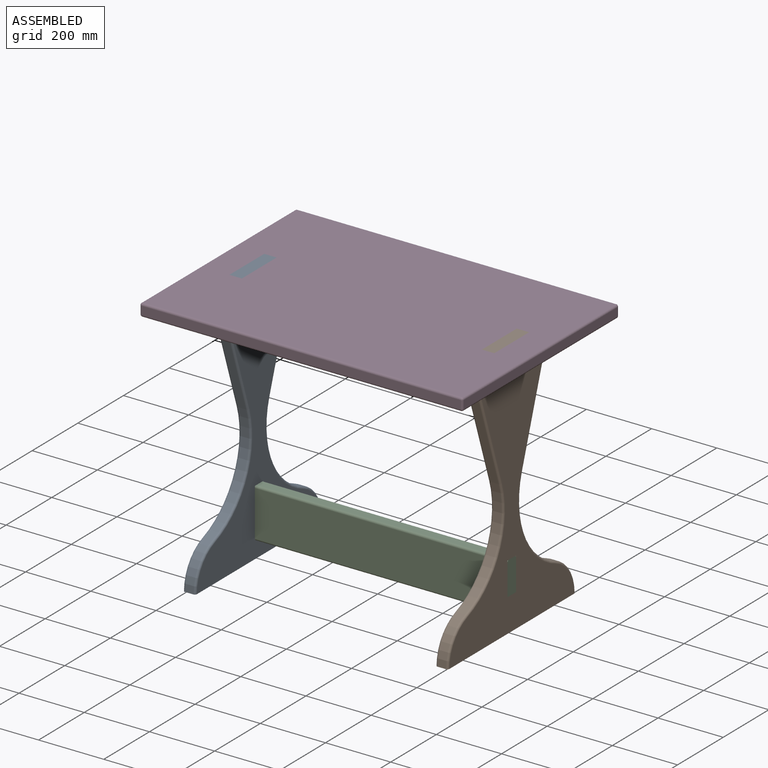
[diagram: assembled view]
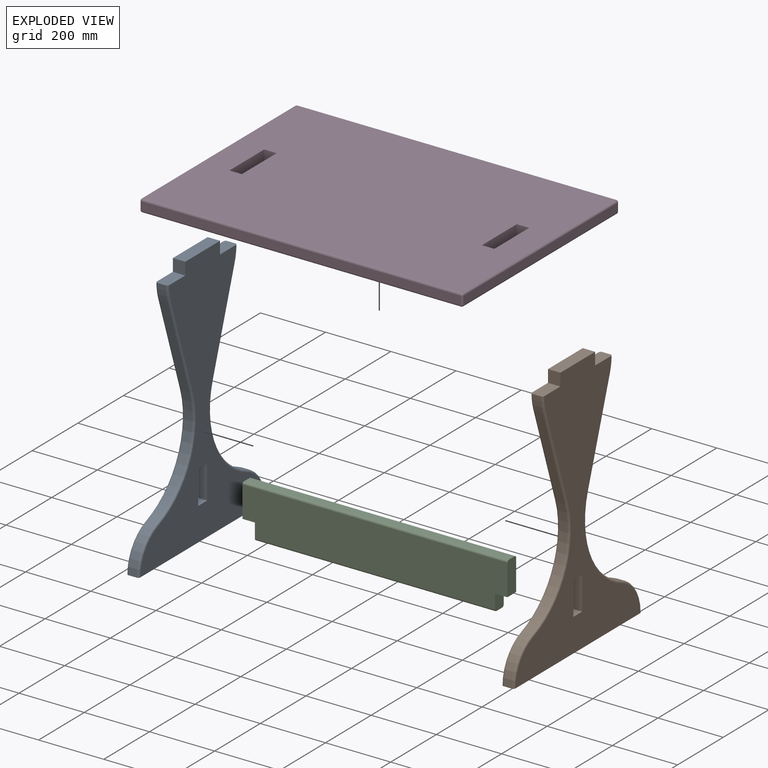
[diagram: exploded view]
GUIDED TOUR — MATED ASSEMBLY (Onshape document 2087d97269d799c85a625509, AutoMate assembly 2087d97269d799c85a625509_5569bcdcba171723008a107e_179e68268d41055ade5ea833_default)

This assembly has 4 components, labeled P0..P3 below (a component is one placed occurrence of a part; the same part can appear more than once), held together by 9 mates. A mate is a constraint between two components; its type names the relative motion it leaves free:
  PLANAR — leaves sliding in the plane through the listed point (normal = the listed direction) and rotation about that normal free.
Axis/direction vectors are unit vectors and 'through' points are millimeter coordinates, both in the assembly's world frame.

MATES
  1. PLANAR "Planar 9": P3 <-> P0, direction (0.000, 0.000, -1.000) through (23.69, 373.24, 503.93) mm
  2. PLANAR "Planar 3": P0 <-> P2, direction (1.000, 0.000, 0.000) through (-344.61, 373.24, 87.09) mm
  3. PLANAR "Planar 2": P2 <-> P0, direction (0.000, 0.000, -1.000) through (-363.66, 373.24, -156.47) mm
  4. PLANAR "Planar 6": P2 <-> P1, direction (0.000, 0.000, -1.000) through (411.04, 373.24, -156.47) mm
  5. PLANAR "Planar 7": P3 <-> P1, direction (0.000, -1.000, 0.000) through (411.04, 449.44, 522.98) mm
  6. PLANAR "Planar 4": P2 <-> P1, direction (0.000, 1.000, 0.000) through (23.69, 392.29, -129.61) mm
  7. PLANAR "Planar 1": P2 <-> P0, direction (0.000, -1.000, 0.000) through (-382.71, 354.19, -108.85) mm
  8. PLANAR "Planar 8": P3 <-> P1, direction (1.000, 0.000, 0.000) through (391.99, 373.24, 522.98) mm
  9. PLANAR "Planar 5": P2 <-> P1, direction (1.000, 0.000, 0.000) through (391.99, 373.24, -181.66) mm

ASSEMBLY ORDER
  1. P2 — the base component [order heuristic]
  2. P0 — core [order heuristic]
  3. P1 — core [order heuristic]
  4. P3 [order verified]
Order-tag legend:
  [order verified] — this step's position reverses a verified removal order: the component was checked to insert without passing through the ones already placed.
  [order heuristic] — the first 3 components form the assembly's core: parts whose collision-free extraction could not be verified, listed in mate-graph order.

Of the 4 components, 4 carry the full construction recipe — the FeatureScript program that regenerates the part's solid from scratch; the rest are supplied as boundary geometry only.
Each toured component is shown spotlighted twice — in the assembled view, then in the exploded view, where a leader line traces a displaced component back to its assembled socket (saturated green if recipe-attached, orange if geometry-only; every other component desaturated gray) — followed by its recipe or geometry summary and the mates that hold it.
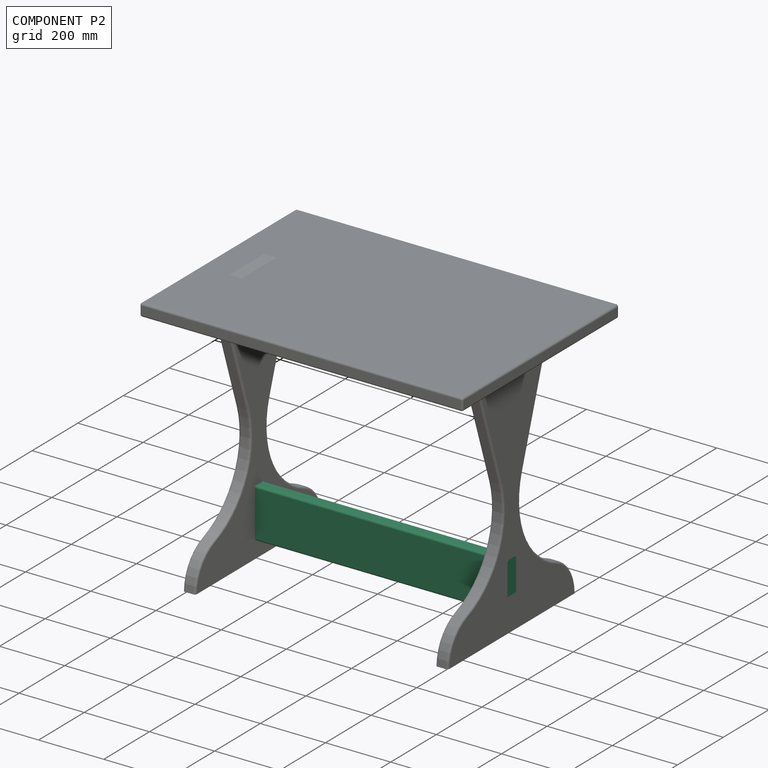
[diagram: component P2 — assembled]
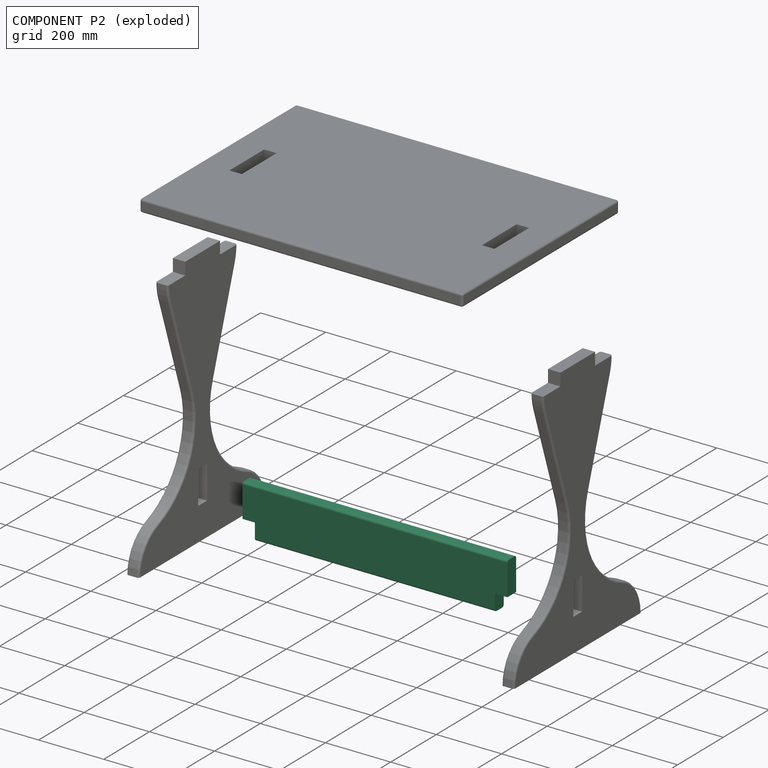
[diagram: component P2 — exploded]
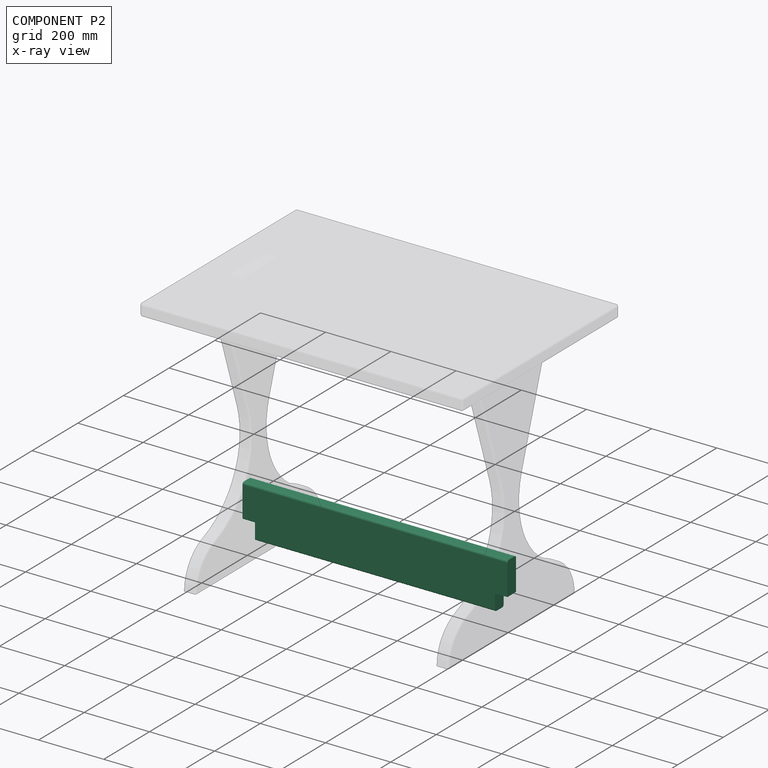
[diagram: component P2 — x-ray view]
COMPONENT P2 — recipe-attached (CADFS 00599730, mesh-verified: the recipe's output STEP matches this component's geometry to below the mesh-comparison resolution (tessellation chordal tolerance ~1.24 mm)).
Held by: PLANAR mate "Planar 3" to P0; PLANAR mate "Planar 2" to P0; PLANAR mate "Planar 6" to P1; PLANAR mate "Planar 4" to P1; PLANAR mate "Planar 1" to P0; PLANAR mate "Planar 5" to P1.
Construction recipe (FeatureScript — the CAD program that rebuilds this solid; sketch coordinates are in the units given by the * unit suffixes, e.g. mm):

FeatureScript 1511;
import(path : "onshape/std/geometry.fs", version : "1511.0");
import(path : "onshape/std/common.fs", version : "1511.0");
const mm = millimeter;
const VERTEX = EntityType.VERTEX;
const EDGE = EntityType.EDGE;
const FACE = EntityType.FACE;
const BODY = EntityType.BODY;
function v(x, y){return vector(x, y);}
function OD(order){return orderDisambiguation(order);}
function OSD(set){return originalSetDisambiguation(set);}
function TD(topology){return topologyDisambiguation(topology);}
function TDD(query){return trueDependencyDisambiguation(query);}
function sQuery(a, b, c) {return sketchEntityQuery(a, b, c);}

annotation { "Feature Type Name" : "Feature", "Feature Type Description" : "" }
export const myFeature = defineFeature(function(context is Context, id is Id, definition is map)
    precondition{}
    {
        {
            var Q0;
            Q0=qCreatedBy(makeId("Front.planeOp"),FACE);
            var sketch = newSketch(context, id + "F0", { "sketchPlane" : qUnion([Q0])});
            skLineSegment(sketch, "E0", {"start": v(0, 0) * mm, "end": v(812.8, 0) * mm});
            skLineSegment(sketch, "E1", {"start": v(812.8, 0) * mm, "end": v(812.8, -101.6) * mm});
            skLineSegment(sketch, "E2", {"start": v(812.8, -101.6) * mm, "end": v(774.7, -101.6) * mm});
            skLineSegment(sketch, "E3", {"start": v(774.7, -101.6) * mm, "end": v(774.7, -152.4) * mm});
            skLineSegment(sketch, "E4", {"start": v(774.7, -152.4) * mm, "end": v(38.1, -152.4) * mm});
            skLineSegment(sketch, "E5", {"start": v(38.1, -152.4) * mm, "end": v(38.1, -101.6) * mm});
            skLineSegment(sketch, "E6", {"start": v(38.1, -101.6) * mm, "end": v(0, -101.6) * mm});
            skLineSegment(sketch, "E7", {"start": v(0, -101.6) * mm, "end": v(0, 0) * mm});
            skSolve(sketch);
        }
        {
            var Q0;
            Q0=makeQuery(id+"F0.imprint","IMPRINT",FACE,{"disambiguationData":[TD([[makeQuery(id+"F0.imprint","IMPRINT",EDGE,{"derivedFrom":sQuery(id+"F0.wireOp",EDGE,"E0")}),-1.0]])]});
            extrude(context, id + "F1", {"entities" : qUnion([Q0]), "depth" : 38.1 * mm, "offsetDistance" : 25.4 * mm});
        }
        {
            var Q0;
            Q0=makeQuery(id+"F1.opExtrude","CAP_EDGE",EDGE,{"disambiguationData":[OSD([sQuery(id+"F0.wireOp",EDGE,"E0")])],"isStart":false});
            var Q1;
            Q1=makeQuery(id+"F1.opExtrude","CAP_EDGE",EDGE,{"disambiguationData":[OSD([sQuery(id+"F0.wireOp",EDGE,"E4")])],"isStart":false});
            var Q2;
            Q2=makeQuery(id+"F1.opExtrude","CAP_EDGE",EDGE,{"disambiguationData":[OSD([sQuery(id+"F0.wireOp",EDGE,"E0")])],"isStart":true});
            var Q3;
            Q3=makeQuery(id+"F1.opExtrude","CAP_EDGE",EDGE,{"disambiguationData":[OSD([sQuery(id+"F0.wireOp",EDGE,"E4")])],"isStart":true});
            fillet(context, id + "F2", {"entities" : qUnion([Q0, Q1, Q2, Q3]), "radius" : 6.35 * mm, "tangentPropagation" : true, "allowEdgeOverflow" : false});
        }
    });
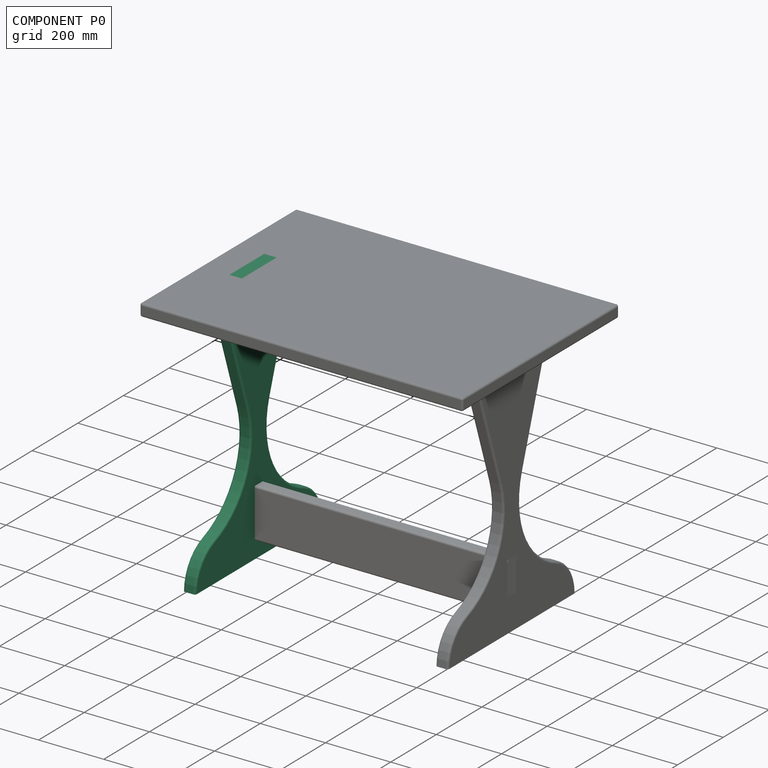
[diagram: component P0 — assembled]
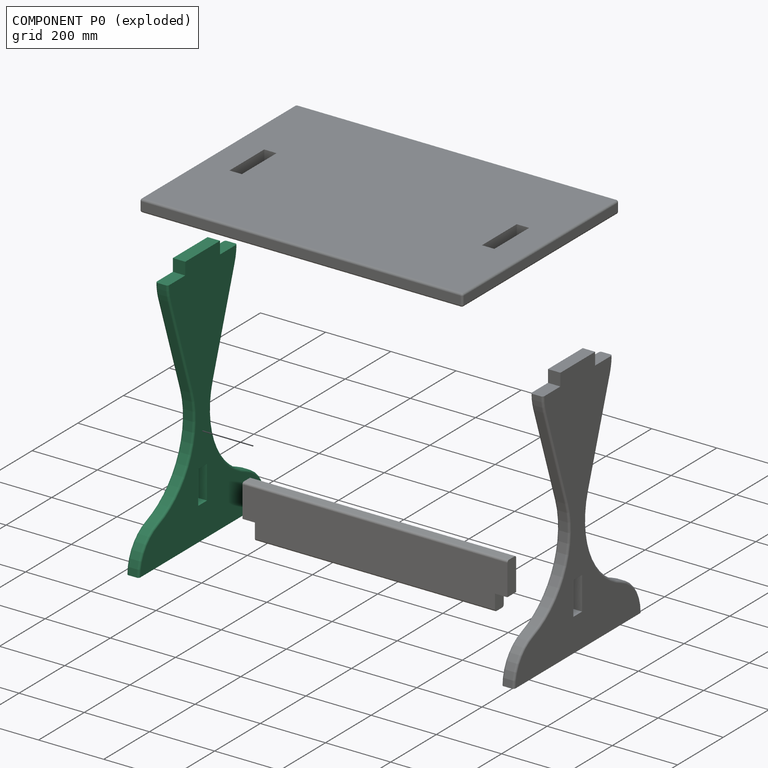
[diagram: component P0 — exploded]
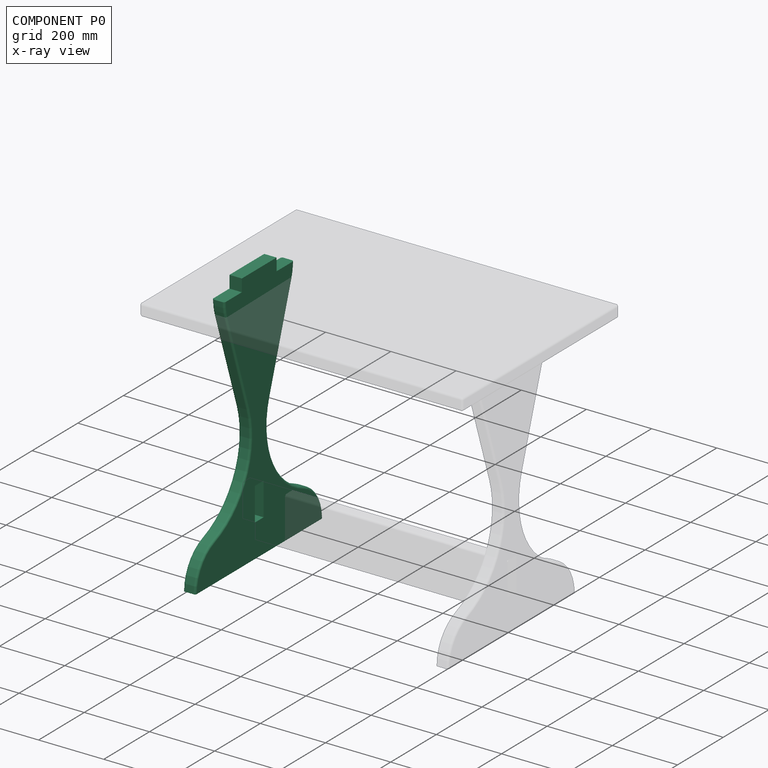
[diagram: component P0 — x-ray view]
COMPONENT P0 — recipe-attached (CADFS 00599729, mesh-verified: the recipe's output STEP matches this component's geometry to below the mesh-comparison resolution (tessellation chordal tolerance ~1.46 mm)).
Held by: PLANAR mate "Planar 9" to P3; PLANAR mate "Planar 3" to P2; PLANAR mate "Planar 2" to P2; PLANAR mate "Planar 1" to P2.
Construction recipe (FeatureScript — the CAD program that rebuilds this solid; sketch coordinates are in the units given by the * unit suffixes, e.g. mm):

FeatureScript 1511;
import(path : "onshape/std/geometry.fs", version : "1511.0");
import(path : "onshape/std/common.fs", version : "1511.0");
const mm = millimeter;
const VERTEX = EntityType.VERTEX;
const EDGE = EntityType.EDGE;
const FACE = EntityType.FACE;
const BODY = EntityType.BODY;
function v(x, y){return vector(x, y);}
function OD(order){return orderDisambiguation(order);}
function OSD(set){return originalSetDisambiguation(set);}
function TD(topology){return topologyDisambiguation(topology);}
function TDD(query){return trueDependencyDisambiguation(query);}
function sQuery(a, b, c) {return sketchEntityQuery(a, b, c);}

annotation { "Feature Type Name" : "Feature", "Feature Type Description" : "" }
export const myFeature = defineFeature(function(context is Context, id is Id, definition is map)
    precondition{}
    {
        {
            var Q0;
            Q0=qCreatedBy(makeId("Right.planeOp"),FACE);
            var sketch = newSketch(context, id + "F0", { "sketchPlane" : qUnion([Q0])});
            skLineSegment(sketch, "E0", {"start": v(0, 0) * mm, "end": v(0, 762) * mm, "construction": true});
            skLineSegment(sketch, "E1", {"start": v(0, 0) * mm, "end": v(-279.4, 0) * mm});
            skArc(sketch, "E2", {"start": v(-195.95, 119.3) * mm, "mid": v(-60.25, 242.07) * mm, "end": v(-48.46, 424.69) * mm});
            skArc(sketch, "E3", {"start": v(-152.4, 762) * mm, "mid": v(-150.44, 737.65) * mm, "end": v(-144.62, 713.92) * mm});
            skLineSegment(sketch, "E4", {"start": v(-152.4, 762) * mm, "end": v(0, 762) * mm});
            skLineSegment(sketch, "E5", {"start": v(-48.46, 424.69) * mm, "end": v(-144.62, 713.92) * mm});
            skArc(sketch, "E6", {"start": v(-195.95, 119.3) * mm, "mid": v(-256.47, 72.8) * mm, "end": v(-279.4, 0) * mm});
            skArc(sketch, "E7.MirrorCS", {"start": v(195.95, 119.3) * mm, "mid": v(256.47, 72.8) * mm, "end": v(279.4, 0) * mm});
            skArc(sketch, "E8.MirrorCS", {"start": v(195.95, 119.3) * mm, "mid": v(60.25, 242.07) * mm, "end": v(48.46, 424.69) * mm});
            skLineSegment(sketch, "E9.MirrorCS", {"start": v(48.46, 424.69) * mm, "end": v(144.62, 713.92) * mm});
            skLineSegment(sketch, "E10.MirrorCS", {"start": v(152.4, 762) * mm, "end": v(0, 762) * mm});
            skLineSegment(sketch, "E11.MirrorCS", {"start": v(0, 0) * mm, "end": v(279.4, 0) * mm});
            skArc(sketch, "E12.MirrorCS", {"start": v(152.4, 762) * mm, "mid": v(150.44, 737.65) * mm, "end": v(144.62, 713.92) * mm});
            skLineSegment(sketch, "E13.bottom", {"start": v(76.2, 762) * mm, "end": v(-76.2, 762) * mm});
            skLineSegment(sketch, "E13.top", {"start": v(76.2, 800.1) * mm, "end": v(-76.2, 800.1) * mm});
            skLineSegment(sketch, "E13.left", {"start": v(76.2, 762) * mm, "end": v(76.2, 800.1) * mm});
            skLineSegment(sketch, "E13.right", {"start": v(-76.2, 762) * mm, "end": v(-76.2, 800.1) * mm});
            skSolve(sketch);
        }
        {
            var Q0;
            Q0 = qSketchRegion(id + "F0", true);
            extrude(context, id + "F1", {"entities" : qUnion([Q0]), "depth" : 38.1 * mm, "offsetDistance" : 25.4 * mm});
        }
        {
            var Q0;
            Q0=makeQuery(id+"F1.opExtrude","CAP_EDGE",EDGE,{"disambiguationData":[OSD([sQuery(id+"F0.wireOp",EDGE,"E2")])],"isStart":false});
            var Q1;
            Q1=makeQuery(id+"F1.opExtrude","CAP_EDGE",EDGE,{"disambiguationData":[OSD([sQuery(id+"F0.wireOp",EDGE,"E8.MirrorCS")])],"isStart":true});
            var Q2;
            Q2=makeQuery(id+"F1.opExtrude","CAP_EDGE",EDGE,{"disambiguationData":[OSD([sQuery(id+"F0.wireOp",EDGE,"E8.MirrorCS")])],"isStart":false});
            var Q3;
            Q3=makeQuery(id+"F1.opExtrude","CAP_EDGE",EDGE,{"disambiguationData":[OSD([sQuery(id+"F0.wireOp",EDGE,"E5")])],"isStart":true});
            fillet(context, id + "F2", {"entities" : qUnion([Q0, Q1, Q2, Q3]), "radius" : 6.35 * mm, "tangentPropagation" : true, "allowEdgeOverflow" : false});
        }
        {
            var Q0;
            Q0=makeQuery(id+"F1.opExtrude","CAP_FACE",FACE,{"disambiguationData":[OSD([sQuery(id+"F0.wireOp",EDGE,"E1"),sQuery(id+"F0.wireOp",EDGE,"E2"),sQuery(id+"F0.wireOp",EDGE,"E3"),sQuery(id+"F0.wireOp",EDGE,"E4"),sQuery(id+"F0.wireOp",EDGE,"E5"),sQuery(id+"F0.wireOp",EDGE,"E6"),sQuery(id+"F0.wireOp",EDGE,"E7.MirrorCS"),sQuery(id+"F0.wireOp",EDGE,"E8.MirrorCS"),sQuery(id+"F0.wireOp",EDGE,"E9.MirrorCS"),sQuery(id+"F0.wireOp",EDGE,"E10.MirrorCS"),sQuery(id+"F0.wireOp",EDGE,"E11.MirrorCS"),sQuery(id+"F0.wireOp",EDGE,"E12.MirrorCS")])],"isStart":true});
            var sketch = newSketch(context, id + "F3", { "sketchPlane" : qUnion([Q0])});
            skLineSegment(sketch, "E14.bottom", {"start": v(-19.05, 203.2) * mm, "end": v(19.05, 203.2) * mm});
            skLineSegment(sketch, "E14.top", {"start": v(-19.05, 101.6) * mm, "end": v(19.05, 101.6) * mm});
            skLineSegment(sketch, "E14.left", {"start": v(-19.05, 203.2) * mm, "end": v(-19.05, 101.6) * mm});
            skLineSegment(sketch, "E14.right", {"start": v(19.05, 203.2) * mm, "end": v(19.05, 101.6) * mm});
            skSolve(sketch);
        }
        {
            var Q0;
            Q0=makeQuery(id+"F3.imprint","IMPRINT",FACE,{"disambiguationData":[TD([[makeQuery(id+"F3.imprint","IMPRINT",EDGE,{"derivedFrom":sQuery(id+"F3.wireOp",EDGE,"E14.bottom")}),-1.0]])]});
            extrude(context, id + "F4", {"entities" : qUnion([Q0]), "operationType" : NewBodyOperationType.REMOVE, "endBound" : BoundingType.UP_TO_NEXT, "oppositeDirection" : true, "depth" : 25.4 * mm, "offsetDistance" : 25.4 * mm});
        }
    });
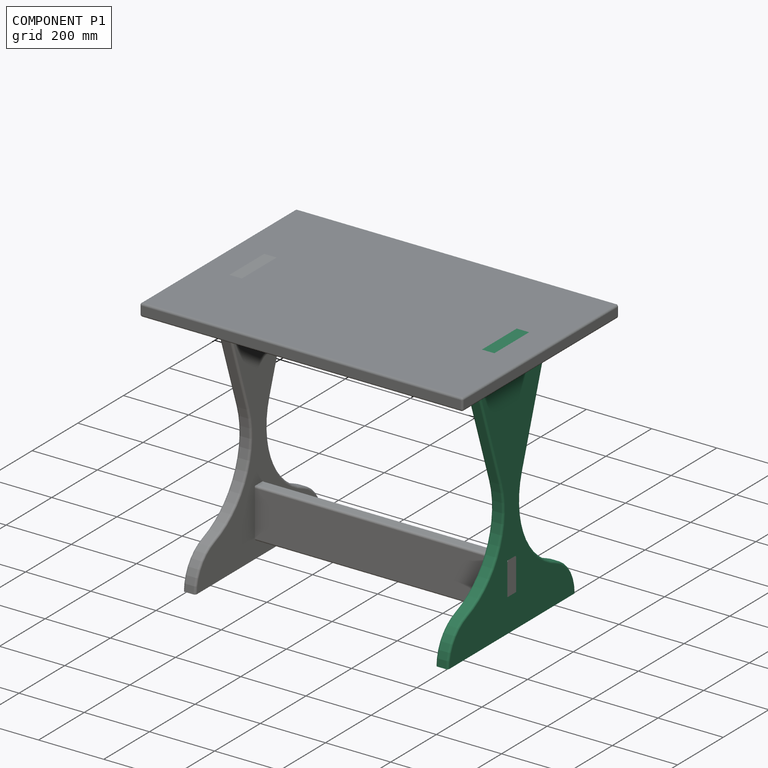
[diagram: component P1 — assembled]
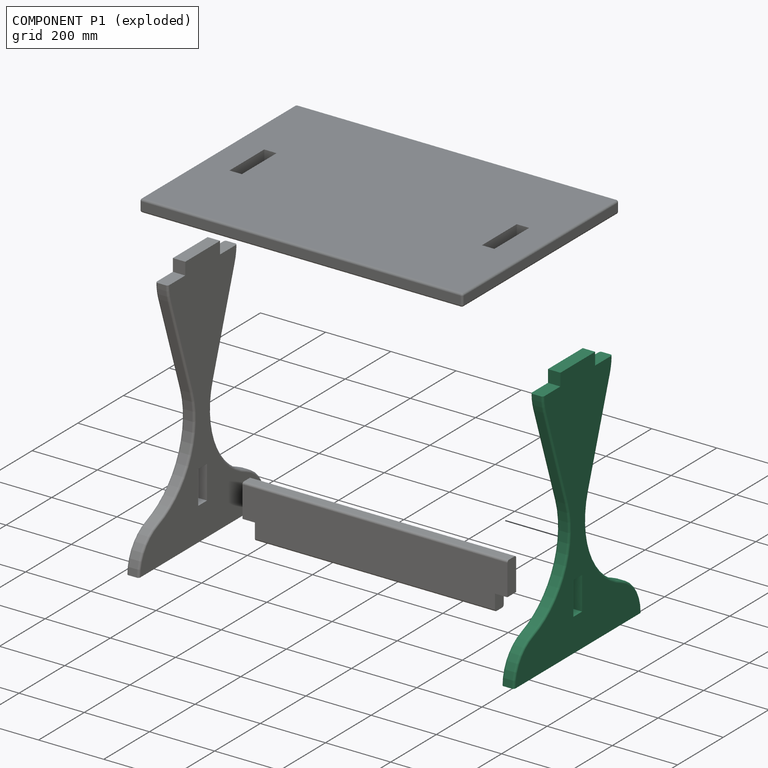
[diagram: component P1 — exploded]
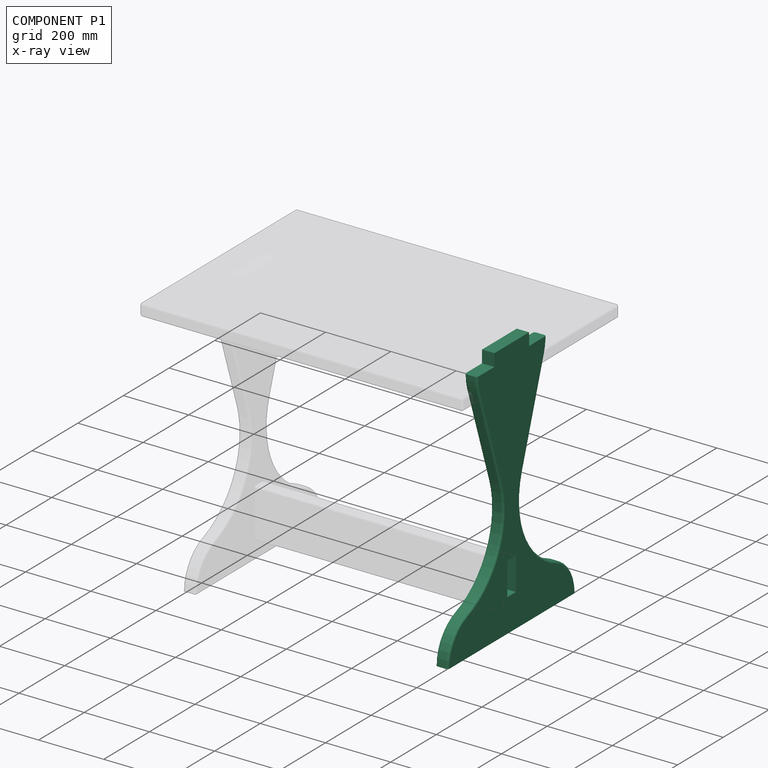
[diagram: component P1 — x-ray view]
COMPONENT P1 — same part as P0 (CADFS 00599729); its construction recipe is shown at P0.
Held by: PLANAR mate "Planar 6" to P2; PLANAR mate "Planar 7" to P3; PLANAR mate "Planar 4" to P2; PLANAR mate "Planar 8" to P3; PLANAR mate "Planar 5" to P2.
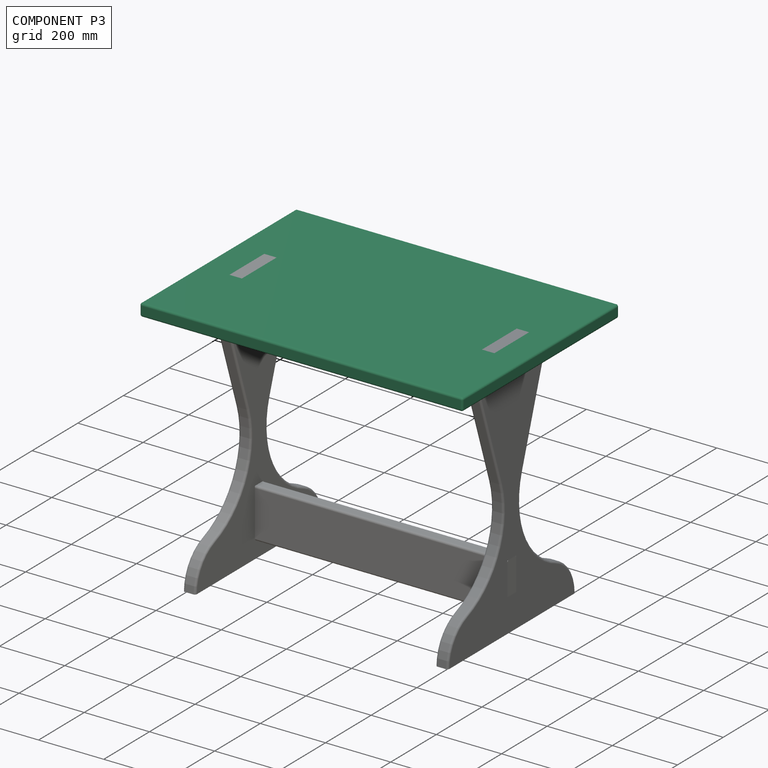
[diagram: component P3 — assembled]
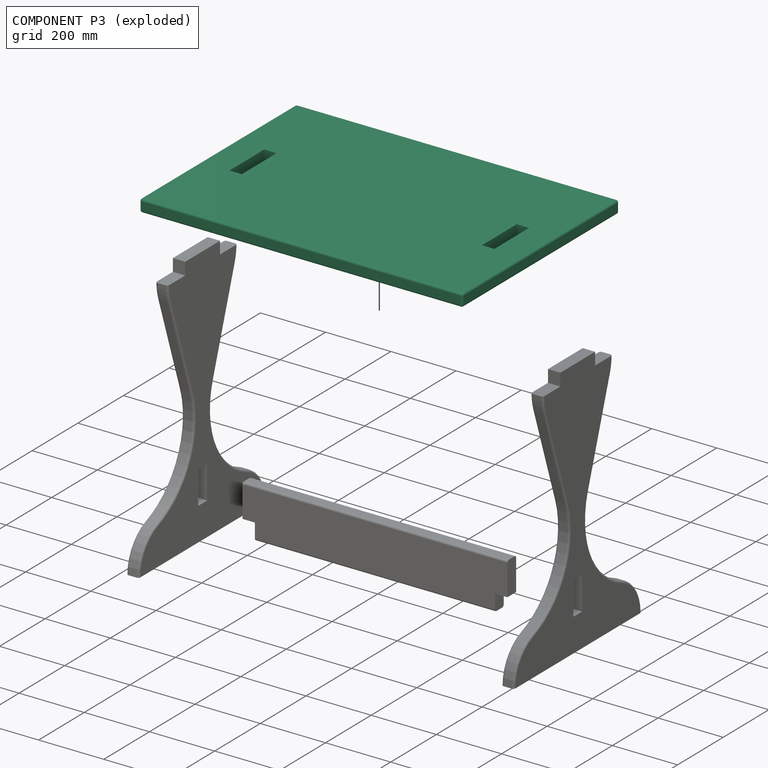
[diagram: component P3 — exploded]
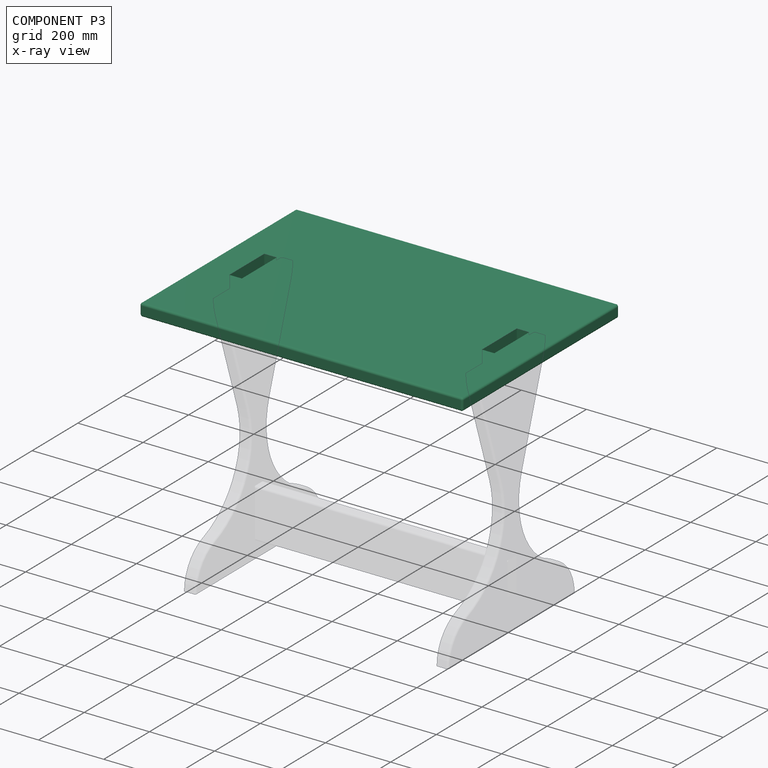
[diagram: component P3 — x-ray view]
COMPONENT P3 — recipe-attached (CADFS 00599731, mesh-verified: the recipe's output STEP matches this component's geometry to below the mesh-comparison resolution (tessellation chordal tolerance ~1.81 mm)).
Held by: PLANAR mate "Planar 9" to P0; PLANAR mate "Planar 7" to P1; PLANAR mate "Planar 8" to P1.
Construction recipe (FeatureScript — the CAD program that rebuilds this solid; sketch coordinates are in the units given by the * unit suffixes, e.g. mm):

FeatureScript 1511;
import(path : "onshape/std/geometry.fs", version : "1511.0");
import(path : "onshape/std/common.fs", version : "1511.0");
const mm = millimeter;
const VERTEX = EntityType.VERTEX;
const EDGE = EntityType.EDGE;
const FACE = EntityType.FACE;
const BODY = EntityType.BODY;
function v(x, y){return vector(x, y);}
function OD(order){return orderDisambiguation(order);}
function OSD(set){return originalSetDisambiguation(set);}
function TD(topology){return topologyDisambiguation(topology);}
function TDD(query){return trueDependencyDisambiguation(query);}
function sQuery(a, b, c) {return sketchEntityQuery(a, b, c);}

annotation { "Feature Type Name" : "Feature", "Feature Type Description" : "" }
export const myFeature = defineFeature(function(context is Context, id is Id, definition is map)
    precondition{}
    {
        {
            var Q0;
            Q0=qCreatedBy(makeId("Top.planeOp"),FACE);
            var sketch = newSketch(context, id + "F0", { "sketchPlane" : qUnion([Q0])});
            skLineSegment(sketch, "E0.bottom", {"start": v(0, 0) * mm, "end": v(990.6, 0) * mm});
            skLineSegment(sketch, "E0.top", {"start": v(0, 685.8) * mm, "end": v(990.6, 685.8) * mm});
            skLineSegment(sketch, "E0.left", {"start": v(0, 0) * mm, "end": v(0, 685.8) * mm});
            skLineSegment(sketch, "E0.right", {"start": v(990.6, 0) * mm, "end": v(990.6, 685.8) * mm});
            skSolve(sketch);
        }
        {
            var Q0;
            Q0=makeQuery(id+"F0.imprint","IMPRINT",FACE,{"disambiguationData":[TD([[makeQuery(id+"F0.imprint","IMPRINT",EDGE,{"derivedFrom":sQuery(id+"F0.wireOp",EDGE,"E0.bottom")}),1.0]])]});
            extrude(context, id + "F1", {"entities" : qUnion([Q0]), "depth" : 38.1 * mm, "offsetDistance" : 25.4 * mm});
        }
        {
            var Q0;
            Q0=makeQuery(id+"F1.opExtrude","CAP_FACE",FACE,{"disambiguationData":[OSD([sQuery(id+"F0.wireOp",EDGE,"E0.bottom"),sQuery(id+"F0.wireOp",EDGE,"E0.top"),sQuery(id+"F0.wireOp",EDGE,"E0.left"),sQuery(id+"F0.wireOp",EDGE,"E0.right")])],"isStart":false});
            var Q1;
            Q1=makeQuery(id+"F1.opExtrude","CAP_FACE",FACE,{"disambiguationData":[OSD([sQuery(id+"F0.wireOp",EDGE,"E0.bottom"),sQuery(id+"F0.wireOp",EDGE,"E0.top"),sQuery(id+"F0.wireOp",EDGE,"E0.left"),sQuery(id+"F0.wireOp",EDGE,"E0.right")])],"isStart":true});
            var Q2;
            Q2=makeQuery(id+"F1.opExtrude","SWEPT_EDGE",EDGE,{"disambiguationData":[OSD([sQuery(id+"F0.wireOp",EDGE,"E0.bottom"),sQuery(id+"F0.wireOp",EDGE,"E0.left")])]});
            var Q3;
            Q3=makeQuery(id+"F1.opExtrude","SWEPT_EDGE",EDGE,{"disambiguationData":[OSD([sQuery(id+"F0.wireOp",EDGE,"E0.bottom"),sQuery(id+"F0.wireOp",EDGE,"E0.right")])]});
            var Q4;
            Q4=makeQuery(id+"F1.opExtrude","SWEPT_EDGE",EDGE,{"disambiguationData":[OSD([sQuery(id+"F0.wireOp",EDGE,"E0.top"),sQuery(id+"F0.wireOp",EDGE,"E0.right")])]});
            var Q5;
            Q5=makeQuery(id+"F1.opExtrude","SWEPT_EDGE",EDGE,{"disambiguationData":[OSD([sQuery(id+"F0.wireOp",EDGE,"E0.top"),sQuery(id+"F0.wireOp",EDGE,"E0.left")])]});
            fillet(context, id + "F2", {"entities" : qUnion([Q0, Q1, Q2, Q3, Q4, Q5]), "radius" : 6.35 * mm, "tangentPropagation" : true, "allowEdgeOverflow" : false});
        }
        {
            var Q0;
            Q0=makeQuery(id+"F1.opExtrude","CAP_FACE",FACE,{"disambiguationData":[OSD([sQuery(id+"F0.wireOp",EDGE,"E0.bottom"),sQuery(id+"F0.wireOp",EDGE,"E0.top"),sQuery(id+"F0.wireOp",EDGE,"E0.left"),sQuery(id+"F0.wireOp",EDGE,"E0.right")])],"isStart":false});
            var sketch = newSketch(context, id + "F3", { "sketchPlane" : qUnion([Q0])});
            skLineSegment(sketch, "E1.bottom", {"start": v(88.9, 419.1) * mm, "end": v(127, 419.1) * mm});
            skLineSegment(sketch, "E1.top", {"start": v(88.9, 266.7) * mm, "end": v(127, 266.7) * mm});
            skLineSegment(sketch, "E1.left", {"start": v(88.9, 419.1) * mm, "end": v(88.9, 266.7) * mm});
            skLineSegment(sketch, "E1.right", {"start": v(127, 419.1) * mm, "end": v(127, 266.7) * mm});
            skLineSegment(sketch, "E2.bottom", {"start": v(863.6, 419.1) * mm, "end": v(901.7, 419.1) * mm});
            skLineSegment(sketch, "E2.top", {"start": v(863.6, 266.7) * mm, "end": v(901.7, 266.7) * mm});
            skLineSegment(sketch, "E2.left", {"start": v(863.6, 419.1) * mm, "end": v(863.6, 266.7) * mm});
            skLineSegment(sketch, "E2.right", {"start": v(901.7, 419.1) * mm, "end": v(901.7, 266.7) * mm});
            skSolve(sketch);
        }
        {
            var Q0;
            Q0=makeQuery(id+"F3.imprint","IMPRINT",FACE,{"disambiguationData":[TD([[makeQuery(id+"F3.imprint","IMPRINT",EDGE,{"derivedFrom":sQuery(id+"F3.wireOp",EDGE,"E1.bottom")}),-1.0]])]});
            var Q1;
            Q1=makeQuery(id+"F3.imprint","IMPRINT",FACE,{"disambiguationData":[TD([[makeQuery(id+"F3.imprint","IMPRINT",EDGE,{"derivedFrom":sQuery(id+"F3.wireOp",EDGE,"E2.bottom")}),-1.0]])]});
            extrude(context, id + "F4", {"entities" : qUnion([Q0, Q1]), "operationType" : NewBodyOperationType.REMOVE, "endBound" : BoundingType.UP_TO_NEXT, "oppositeDirection" : true, "depth" : 25.4 * mm, "offsetDistance" : 25.4 * mm});
        }
    });
PROVENANCE & LICENSES
Assembly (occurrences, transforms, mates, per-part STEP geometry): AutoMate dataset, Zenodo record 7776208, CC0.
Construction recipes: CADFS (HuggingFace VladPyatov/CADFS, CC-BY-4.0, layered over the ABC dataset), FeatureScript reconstruction programs keyed by ABC model id.
Join: ABC meta listings map ABC model id -> Onshape documentId; within a shared document, parts are matched by geometric signature (bounding-box dims + volume at 0.1% relative tolerance, exact B-rep face/solid counts).
Verification: 4 of this assembly's 4 components carry a recipe attachment, and every attachment is mesh-verified: the CADFS STEP and the AutoMate member STEP were compared as meshes in their shared local frame (symmetric sampled-point-to-mesh distance); worst across the 4 attachments: below the mesh-comparison resolution (tessellation chordal tolerance ~1.81 mm) on a 1205 mm part.
Renders: orthographic iso camera (az 35 / el 25); the floor grid conveys scale (grid pitch printed in each image; no ruler). In the exploded view each component is displaced by its stored offset vector: the offsets alone carry the explosion direction (mate normal/axis signs are not orientation cues and do not encode it), and separation distances are assigned per mate-chain, not proportionally to assembly-order depth.
